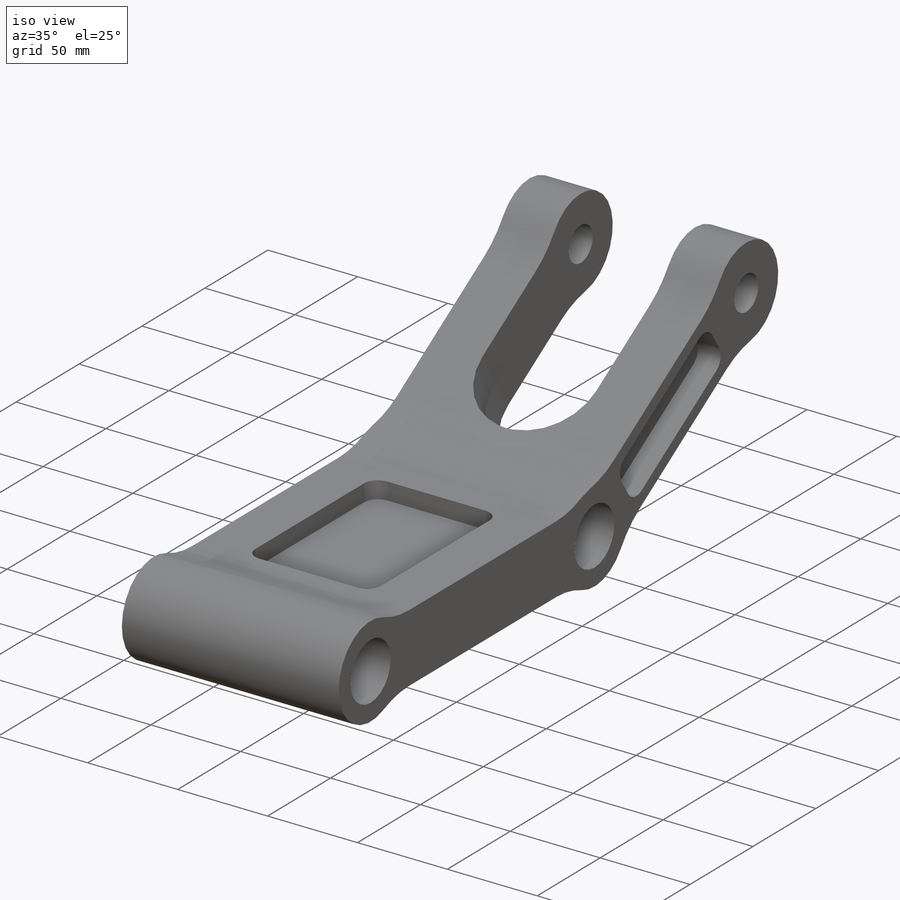
[diagram: iso view]
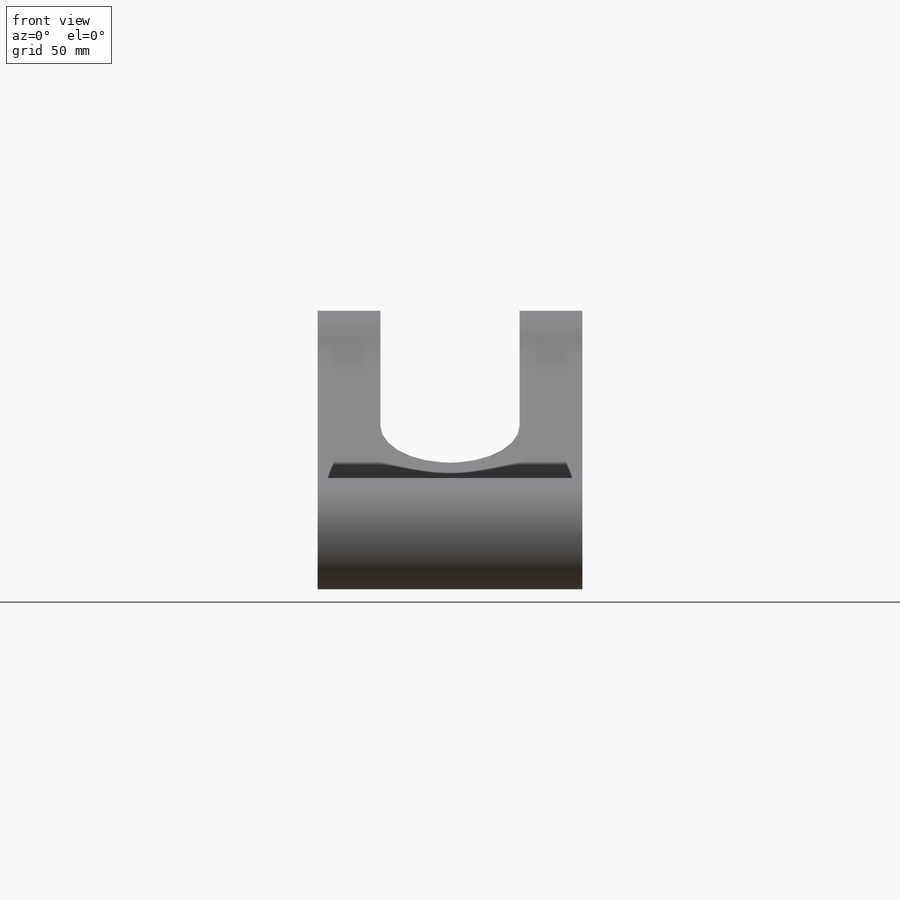
[diagram: front view]
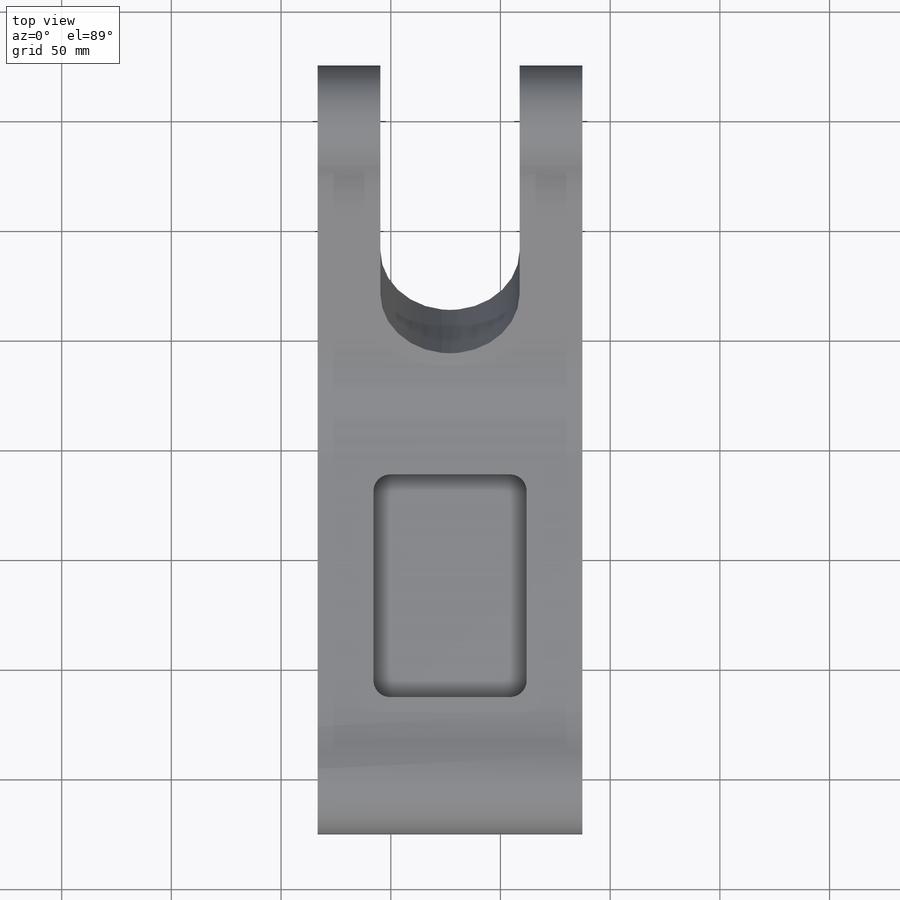
[diagram: top view]
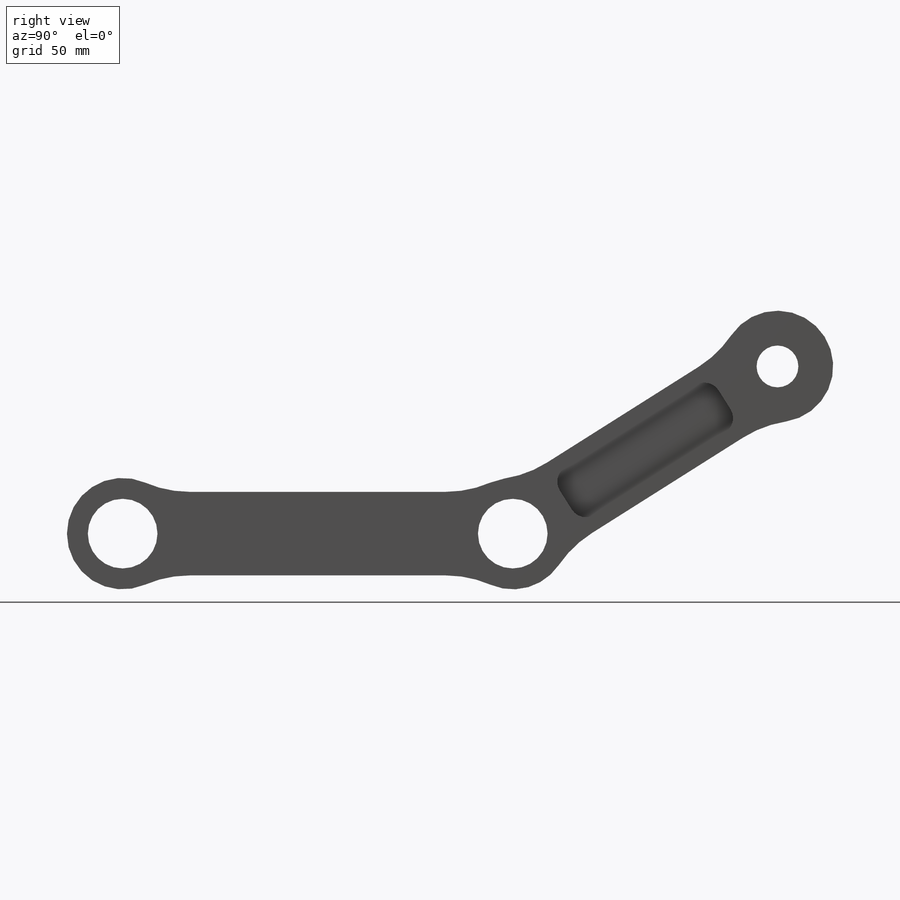
[diagram: right view]
SOLIDWORKS PART (.sldprt)
format: sldprt  version: not decoded by parser v0  size: 706,560 bytes
history: native  units: mm
features: sketch x14, extrude x8, fillet x7, cut_extrude x6, mirror x4, plane x2, material x1, chamfer x1, delete_body x1 (+13 scaffold rows collapsed)
feature tree (57):
  scaffold x13  (default folders/planes/origin — collapsed)
  material  "6061-T6 (SS)"
  sketch  "Sketch1"  dims[c1.D1=31.75mm c1.D3=44.45mm c2.D1=~3.602121mm c2.D2=177.8mm c2.D4=15.875mm c2.D5=15.875mm]
  extrude  "Boss-Extrude1"  Depth=60.325mm
  sketch  "Sketch4"  dims[D1=~43.539501mm]
  extrude  "Boss-Extrude2"  Depth=3.175mm
  sketch  "Sketch5"  dims[c1.D1=~14.040502mm c2.D1=60.0deg c2.D2=~37.909987mm c3.D2=60.0deg c3.D3=38.1mm c3.D4=~146.69148mm]
  cut_extrude  "Cut-Extrude2"  [1 undecoded]
  sketch  "Sketch6"
  extrude  "Boss-Extrude3"  Depth=25.4mm
  sketch  "Sketch7"  dims[D3=12.7mm D4=~121.29148mm D1=25.4mm D2=12.7mm]
  cut_extrude  "Cut-Extrude3"  [1 undecoded]
  fillet  "Fillet1"  Radius=6.35mm
  mirror  "Mirror1"
  fillet  "Fillet2"  Radius=25.4mm
  sketch  "Sketch9"  dims[c1.D1=28.575mm c1.D2=28.575mm c1.D3=19.05mm c2.D1=120.65mm c2.D2=76.2mm]
  extrude  "Boss-Extrude5"  Depth=28.575mm
  sketch  "Sketch10"  dims[D1=15.875mm D2=15.875mm]
  extrude  "Boss-Extrude6"  Depth=25.4mm
  sketch  "Sketch11"  dims[D1=12.7mm]
  extrude  "Boss-Extrude7"  [1 undecoded]
  chamfer  "Chamfer1"  Distance=44.45mm Angle=45deg
  sketch  "Sketch12"  dims[D1=22.225mm]
  extrude  "Boss-Extrude8"  Depth=3.175mm
  mirror  "Mirror4"
  fillet  "Fillet4"  Radius=25.4mm
  fillet  "Fillet5"  Radius=6.35mm
  sketch  "Sketch13"  dims[D1=50.8mm D2=19.05mm D3=19.05mm]
  extrude  "Boss-Extrude9"  Depth=127mm
  fillet  "Fillet6"  Radius=50.8mm
  delete_body  "Body-Delete2"
  sketch  "Sketch17"  dims[D1=~356.226847mm D2=31.75mm]
  cut_extrude  "Cut-Extrude4"  Depth=63.5mm
  sketch  "Sketch18"  dims[D1=25.4mm D2=25.4mm D3=3.175mm D4=3.175mm]
  cut_extrude  "Cut-Extrude5"  [1 undecoded]
  sketch  "Sketch19"  dims[D1=101.6mm D2=25.4mm D3=25.4mm D4=6.35mm]
  cut_extrude  "Cut-Extrude6"  Depth=9.525mm
  plane  "Plane1"
  mirror  "Mirror5"
  fillet  "Fillet7"  Radius=7.62mm
  sketch  "Sketch20"  dims[c1.D1=84.6078mm c2.D1=~0.459582deg c3.D1=6.35mm c3.D2=6.35mm c3.D3=76.2mm c3.D4=28.575mm c3.D5=28.575mm]
  cut_extrude  "Cut-Extrude7"  Depth=12.7mm
  fillet  "Fillet8"  Radius=7.62mm
  plane  "Plane2"
  mirror  "Mirror6"
decode coverage: 31 of 41 modeling features carry decoded parameters
note: ~ marks probable driven/reference dimensions
note: 4 parameter values undecoded
summary: no parameter record found for 4 features
note: suppression state not decoded; provenance and decode notes live in map.json
